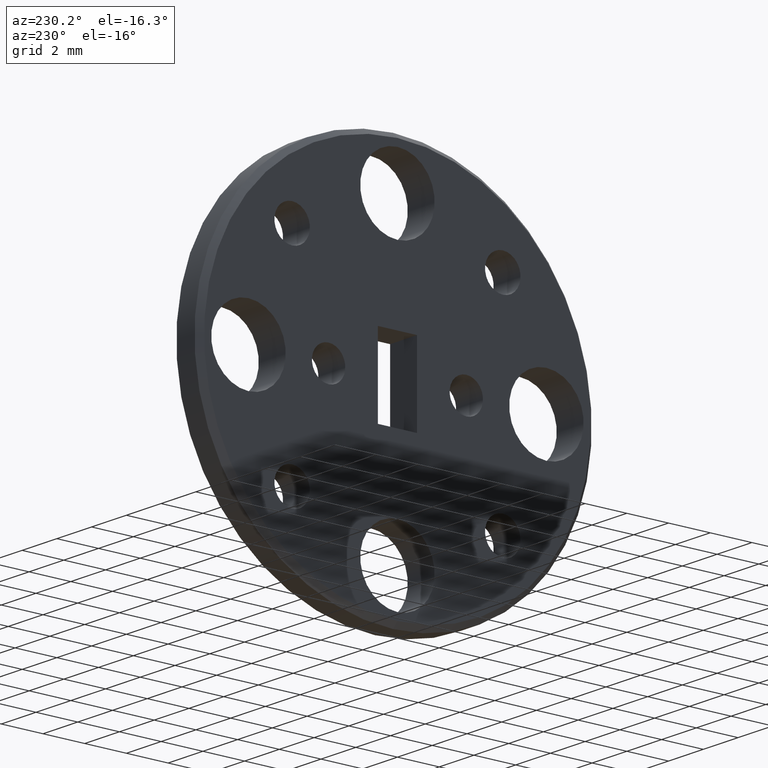
[diagram: clean part render]
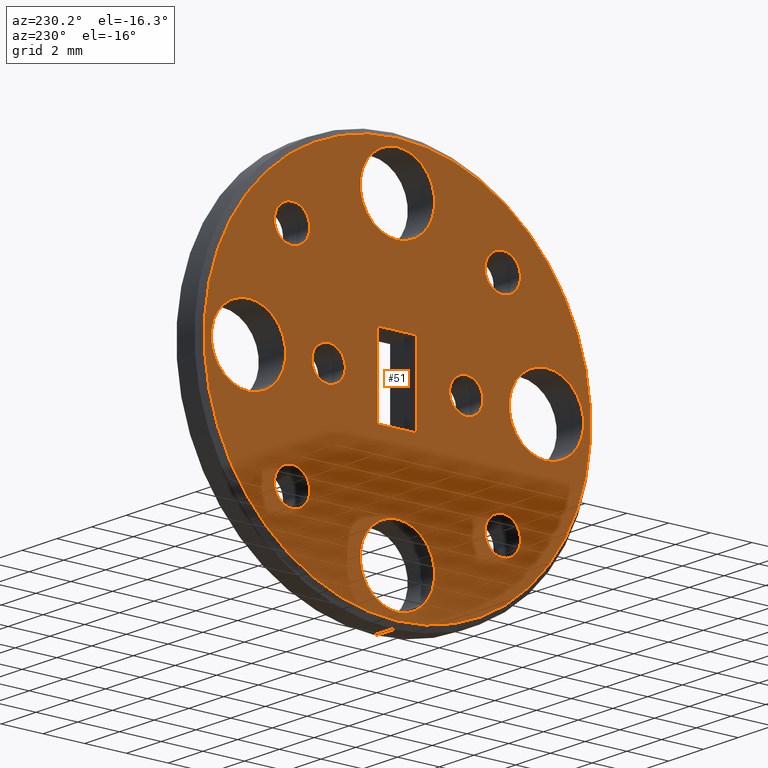
[diagram: same view with one face highlighted and labeled with its STEP entity id]
A machine part, auxiliary view. The second image highlights one B-rep face of the part: STEP entity #51.
In plain terms, the highlighted planar face has unit normal (-1, 0, 0).
Its self-contained STEP definition (entity closure, byte-faithful):
#7 = EDGE_CURVE ( 'NONE', #545, #843, #1102, .T. ) ;
#8 = CARTESIAN_POINT ( 'NONE',  ( -5.262123598916295500E-017, 0.2812500000000000600, 0.0000000000000000000 ) ) ;
#9 = CARTESIAN_POINT ( 'NONE',  ( 0.0000000000000000000, 0.0000000000000000000, 0.0000000000000000000 ) ) ;
#10 = DIRECTION ( 'NONE',  ( 0.0000000000000000000, 0.0000000000000000000, 1.000000000000000000 ) ) ;
#20 = CARTESIAN_POINT ( 'NONE',  ( -5.262123598916295500E-017, 0.2812500000000000600, -0.07031499999999954500 ) ) ;
#21 = EDGE_LOOP ( 'NONE', ( #1028, #849 ) ) ;
#23 = LINE ( 'NONE', #1135, #597 ) ;
#28 = CARTESIAN_POINT ( 'NONE',  ( 0.0000000000000000000, -0.03699999999999999800, 0.07399999999999999600 ) ) ;
#41 = AXIS2_PLACEMENT_3D ( 'NONE', #536, #1040, #766 ) ;
#43 = FACE_BOUND ( 'NONE', #60, .T. ) ;
#46 = DIRECTION ( 'NONE',  ( -1.000000000000000000, -0.0000000000000000000, -0.0000000000000000000 ) ) ;
#47 = DIRECTION ( 'NONE',  ( -1.000000000000000000, -0.0000000000000000000, -0.0000000000000000000 ) ) ;
#51 = ADVANCED_FACE ( 'NONE', ( #887, #942, #175, #738, #355, #602, #1019, #764, #445, #43, #712, #1090 ), #907, .T. ) ;
#52 = ORIENTED_EDGE ( 'NONE', *, *, #980, .F. ) ;
#56 = EDGE_CURVE ( 'NONE', #284, #442, #1146, .T. ) ;
#60 = EDGE_LOOP ( 'NONE', ( #350, #126 ) ) ;
#63 = DIRECTION ( 'NONE',  ( -1.000000000000000000, -0.0000000000000000000, -0.0000000000000000000 ) ) ;
#77 = ORIENTED_EDGE ( 'NONE', *, *, #263, .T. ) ;
#87 = CIRCLE ( 'NONE', #235, 0.03349999999999951600 ) ;
#89 = EDGE_LOOP ( 'NONE', ( #234, #327, #501, #944 ) ) ;
#107 = EDGE_CURVE ( 'NONE', #843, #545, #655, .T. ) ;
#113 = VERTEX_POINT ( 'NONE', #1016 ) ;
#116 = ORIENTED_EDGE ( 'NONE', *, *, #149, .F. ) ;
#117 = CARTESIAN_POINT ( 'NONE',  ( -6.123233995736789800E-020, -0.1299999999999999800, -0.03149999999999999300 ) ) ;
#120 = DIRECTION ( 'NONE',  ( -0.0000000000000000000, -0.0000000000000000000, -1.000000000000000000 ) ) ;
#121 = DIRECTION ( 'NONE',  ( 0.0000000000000000000, 0.0000000000000000000, 1.000000000000000000 ) ) ;
#125 = EDGE_CURVE ( 'NONE', #471, #675, #427, .T. ) ;
#126 = ORIENTED_EDGE ( 'NONE', *, *, #896, .F. ) ;
#128 = CIRCLE ( 'NONE', #474, 0.3649999999999999400 ) ;
#131 = EDGE_CURVE ( 'NONE', #658, #365, #399, .T. ) ;
#134 = CARTESIAN_POINT ( 'NONE',  ( -5.712977318022390700E-017, -0.1988737822087161500, 0.1988737822087169000 ) ) ;
#140 = EDGE_LOOP ( 'NONE', ( #176, #951 ) ) ;
#147 = CARTESIAN_POINT ( 'NONE',  ( 0.0000000000000000000, 0.03699999999999999800, 0.07399999999999999600 ) ) ;
#149 = EDGE_CURVE ( 'NONE', #1014, #534, #615, .T. ) ;
#156 = CIRCLE ( 'NONE', #590, 0.07031499999999954500 ) ;
#162 = VERTEX_POINT ( 'NONE', #117 ) ;
#167 = CARTESIAN_POINT ( 'NONE',  ( -5.262123598916295500E-017, 8.611103968204569800E-018, -0.3515649999999995700 ) ) ;
#171 = EDGE_LOOP ( 'NONE', ( #982, #1021 ) ) ;
#175 = FACE_OUTER_BOUND ( 'NONE', #1091, .T. ) ;
#176 = ORIENTED_EDGE ( 'NONE', *, *, #804, .F. ) ;
#187 = AXIS2_PLACEMENT_3D ( 'NONE', #374, #459, #651 ) ;
#189 = CARTESIAN_POINT ( 'NONE',  ( -5.712977318022390700E-017, 0.1988737822087160700, -0.1988737822087169600 ) ) ;
#190 = EDGE_CURVE ( 'NONE', #1087, #544, #532, .T. ) ;
#192 = DIRECTION ( 'NONE',  ( 0.0000000000000000000, 0.0000000000000000000, 1.000000000000000000 ) ) ;
#193 = DIRECTION ( 'NONE',  ( -1.000000000000000000, -0.0000000000000000000, -0.0000000000000000000 ) ) ;
#201 = EDGE_LOOP ( 'NONE', ( #353, #393 ) ) ;
#203 = AXIS2_PLACEMENT_3D ( 'NONE', #1023, #937, #303 ) ;
#222 = VERTEX_POINT ( 'NONE', #531 ) ;
#234 = ORIENTED_EDGE ( 'NONE', *, *, #784, .F. ) ;
#235 = AXIS2_PLACEMENT_3D ( 'NONE', #404, #396, #1013 ) ;
#240 = VERTEX_POINT ( 'NONE', #1047 ) ;
#250 = DIRECTION ( 'NONE',  ( -1.000000000000000000, -0.0000000000000000000, -0.0000000000000000000 ) ) ;
#263 = EDGE_CURVE ( 'NONE', #113, #1143, #710, .T. ) ;
#266 = VERTEX_POINT ( 'NONE', #880 ) ;
#267 = LINE ( 'NONE', #903, #587 ) ;
#268 = DIRECTION ( 'NONE',  ( -0.0000000000000000000, -1.000000000000000000, -0.0000000000000000000 ) ) ;
#273 = DIRECTION ( 'NONE',  ( 0.0000000000000000000, 0.0000000000000000000, 1.000000000000000000 ) ) ;
#279 = CARTESIAN_POINT ( 'NONE',  ( 0.0000000000000000000, 0.03699999999999999800, -0.07399999999999999600 ) ) ;
#284 = VERTEX_POINT ( 'NONE', #711 ) ;
#289 = DIRECTION ( 'NONE',  ( -1.000000000000000000, -0.0000000000000000000, -0.0000000000000000000 ) ) ;
#290 = ORIENTED_EDGE ( 'NONE', *, *, #622, .F. ) ;
#301 = CARTESIAN_POINT ( 'NONE',  ( -5.712977318022390700E-017, -0.1988737822087161500, 0.2323737822087164100 ) ) ;
#303 = DIRECTION ( 'NONE',  ( 0.0000000000000000000, 0.0000000000000000000, 1.000000000000000000 ) ) ;
#312 = VERTEX_POINT ( 'NONE', #789 ) ;
#322 = CIRCLE ( 'NONE', #572, 0.03149999999999999300 ) ;
#327 = ORIENTED_EDGE ( 'NONE', *, *, #551, .F. ) ;
#328 = AXIS2_PLACEMENT_3D ( 'NONE', #476, #388, #668 ) ;
#331 = DIRECTION ( 'NONE',  ( -1.000000000000000000, 0.0000000000000000000, 0.0000000000000000000 ) ) ;
#333 = CARTESIAN_POINT ( 'NONE',  ( -5.712977318022390700E-017, -0.1988737822087169000, -0.2323737822087156600 ) ) ;
#337 = CIRCLE ( 'NONE', #526, 0.03349999999999951600 ) ;
#350 = ORIENTED_EDGE ( 'NONE', *, *, #840, .F. ) ;
#353 = ORIENTED_EDGE ( 'NONE', *, *, #740, .F. ) ;
#355 = FACE_BOUND ( 'NONE', #201, .T. ) ;
#359 = EDGE_LOOP ( 'NONE', ( #290, #678 ) ) ;
#360 = EDGE_CURVE ( 'NONE', #534, #1014, #749, .T. ) ;
#365 = VERTEX_POINT ( 'NONE', #781 ) ;
#371 = CARTESIAN_POINT ( 'NONE',  ( -5.712977318022390700E-017, 0.1988737822087169600, 0.1988737822087160700 ) ) ;
#374 = CARTESIAN_POINT ( 'NONE',  ( -5.712977318022390700E-017, -0.1988737822087169000, -0.1988737822087161500 ) ) ;
#383 = LINE ( 'NONE', #28, #638 ) ;
#386 = DIRECTION ( 'NONE',  ( -1.000000000000000000, -0.0000000000000000000, -0.0000000000000000000 ) ) ;
#388 = DIRECTION ( 'NONE',  ( -1.000000000000000000, -0.0000000000000000000, -0.0000000000000000000 ) ) ;
#393 = ORIENTED_EDGE ( 'NONE', *, *, #485, .F. ) ;
#395 = CARTESIAN_POINT ( 'NONE',  ( 0.0000000000000000000, 0.03699999999999999800, -0.07399999999999999600 ) ) ;
#396 = DIRECTION ( 'NONE',  ( -1.000000000000000000, -0.0000000000000000000, -0.0000000000000000000 ) ) ;
#399 = CIRCLE ( 'NONE', #328, 0.07031499999999954500 ) ;
#401 = AXIS2_PLACEMENT_3D ( 'NONE', #8, #992, #435 ) ;
#404 = CARTESIAN_POINT ( 'NONE',  ( -5.712977318022390700E-017, -0.1988737822087161500, 0.1988737822087169000 ) ) ;
#411 = CARTESIAN_POINT ( 'NONE',  ( -6.123233995736789800E-020, 0.1299999999999999800, 0.03149999999999999300 ) ) ;
#415 = VERTEX_POINT ( 'NONE', #874 ) ;
#423 = AXIS2_PLACEMENT_3D ( 'NONE', #966, #697, #607 ) ;
#427 = CIRCLE ( 'NONE', #850, 0.07031499999999954500 ) ;
#432 = EDGE_CURVE ( 'NONE', #1143, #113, #128, .T. ) ;
#435 = DIRECTION ( 'NONE',  ( 0.0000000000000000000, 0.0000000000000000000, 1.000000000000000000 ) ) ;
#442 = VERTEX_POINT ( 'NONE', #333 ) ;
#445 = FACE_BOUND ( 'NONE', #359, .T. ) ;
#447 = VERTEX_POINT ( 'NONE', #1041 ) ;
#448 = CARTESIAN_POINT ( 'NONE',  ( 0.0000000000000000000, 4.531193156845206700E-017, 0.3649999999999999400 ) ) ;
#454 = CIRCLE ( 'NONE', #713, 0.07031499999999954500 ) ;
#456 = ORIENTED_EDGE ( 'NONE', *, *, #125, .F. ) ;
#459 = DIRECTION ( 'NONE',  ( -1.000000000000000000, -0.0000000000000000000, -0.0000000000000000000 ) ) ;
#463 = DIRECTION ( 'NONE',  ( -1.000000000000000000, -0.0000000000000000000, -0.0000000000000000000 ) ) ;
#464 = CARTESIAN_POINT ( 'NONE',  ( -6.123233995736789800E-020, 0.1299999999999999800, 0.0000000000000000000 ) ) ;
#471 = VERTEX_POINT ( 'NONE', #877 ) ;
#473 = CARTESIAN_POINT ( 'NONE',  ( -5.262123598916295500E-017, 0.2812500000000000600, 0.0000000000000000000 ) ) ;
#474 = AXIS2_PLACEMENT_3D ( 'NONE', #525, #331, #605 ) ;
#476 = CARTESIAN_POINT ( 'NONE',  ( -5.262123598916295500E-017, 0.0000000000000000000, 0.2812500000000000600 ) ) ;
#477 = DIRECTION ( 'NONE',  ( -1.000000000000000000, -0.0000000000000000000, -0.0000000000000000000 ) ) ;
#485 = EDGE_CURVE ( 'NONE', #612, #266, #996, .T. ) ;
#489 = DIRECTION ( 'NONE',  ( 0.0000000000000000000, 0.0000000000000000000, 1.000000000000000000 ) ) ;
#490 = ORIENTED_EDGE ( 'NONE', *, *, #663, .F. ) ;
#491 = DIRECTION ( 'NONE',  ( 0.0000000000000000000, 0.0000000000000000000, 1.000000000000000000 ) ) ;
#493 = AXIS2_PLACEMENT_3D ( 'NONE', #917, #584, #574 ) ;
#497 = CARTESIAN_POINT ( 'NONE',  ( 0.0000000000000000000, -0.03699999999999999800, 0.07399999999999999600 ) ) ;
#501 = ORIENTED_EDGE ( 'NONE', *, *, #1151, .F. ) ;
#503 = DIRECTION ( 'NONE',  ( 0.0000000000000000000, 0.0000000000000000000, 1.000000000000000000 ) ) ;
#506 = AXIS2_PLACEMENT_3D ( 'NONE', #189, #250, #905 ) ;
#513 = CIRCLE ( 'NONE', #768, 0.03349999999999951600 ) ;
#517 = AXIS2_PLACEMENT_3D ( 'NONE', #949, #63, #858 ) ;
#525 = CARTESIAN_POINT ( 'NONE',  ( 0.0000000000000000000, 0.0000000000000000000, 0.0000000000000000000 ) ) ;
#526 = AXIS2_PLACEMENT_3D ( 'NONE', #1012, #193, #564 ) ;
#531 = CARTESIAN_POINT ( 'NONE',  ( -5.712977318022390700E-017, -0.1988737822087161500, 0.1653737822087173700 ) ) ;
#532 = LINE ( 'NONE', #395, #1075 ) ;
#534 = VERTEX_POINT ( 'NONE', #1074 ) ;
#536 = CARTESIAN_POINT ( 'NONE',  ( 0.0000000000000000000, 0.0000000000000000000, 0.0000000000000000000 ) ) ;
#543 = EDGE_CURVE ( 'NONE', #240, #447, #513, .T. ) ;
#544 = VERTEX_POINT ( 'NONE', #279 ) ;
#545 = VERTEX_POINT ( 'NONE', #1134 ) ;
#547 = EDGE_LOOP ( 'NONE', ( #52, #985 ) ) ;
#548 = CIRCLE ( 'NONE', #1058, 0.03349999999999951600 ) ;
#551 = EDGE_CURVE ( 'NONE', #415, #882, #267, .T. ) ;
#553 = AXIS2_PLACEMENT_3D ( 'NONE', #568, #477, #489 ) ;
#557 = EDGE_LOOP ( 'NONE', ( #719, #116 ) ) ;
#563 = DIRECTION ( 'NONE',  ( -1.000000000000000000, 0.0000000000000000000, 0.0000000000000000000 ) ) ;
#564 = DIRECTION ( 'NONE',  ( 0.0000000000000000000, 0.0000000000000000000, 1.000000000000000000 ) ) ;
#566 = CARTESIAN_POINT ( 'NONE',  ( -5.712977318022390700E-017, 0.1988737822087160700, -0.2323737822087164900 ) ) ;
#568 = CARTESIAN_POINT ( 'NONE',  ( -5.262123598916295500E-017, 0.0000000000000000000, -0.2812500000000000600 ) ) ;
#572 = AXIS2_PLACEMENT_3D ( 'NONE', #943, #1024, #503 ) ;
#574 = DIRECTION ( 'NONE',  ( 0.0000000000000000000, 0.0000000000000000000, 1.000000000000000000 ) ) ;
#583 = DIRECTION ( 'NONE',  ( 0.0000000000000000000, 0.0000000000000000000, 1.000000000000000000 ) ) ;
#584 = DIRECTION ( 'NONE',  ( -1.000000000000000000, -0.0000000000000000000, -0.0000000000000000000 ) ) ;
#587 = VECTOR ( 'NONE', #623, 39.37007874015748100 ) ;
#588 = EDGE_CURVE ( 'NONE', #714, #312, #654, .T. ) ;
#590 = AXIS2_PLACEMENT_3D ( 'NONE', #932, #46, #762 ) ;
#597 = VECTOR ( 'NONE', #268, 39.37007874015748100 ) ;
#602 = FACE_BOUND ( 'NONE', #140, .T. ) ;
#605 = DIRECTION ( 'NONE',  ( 0.0000000000000000000, 0.0000000000000000000, 1.000000000000000000 ) ) ;
#607 = DIRECTION ( 'NONE',  ( 0.0000000000000000000, 0.0000000000000000000, 1.000000000000000000 ) ) ;
#612 = VERTEX_POINT ( 'NONE', #20 ) ;
#615 = CIRCLE ( 'NONE', #493, 0.07031499999999954500 ) ;
#622 = EDGE_CURVE ( 'NONE', #312, #714, #548, .T. ) ;
#623 = DIRECTION ( 'NONE',  ( 0.0000000000000000000, 0.0000000000000000000, 1.000000000000000000 ) ) ;
#638 = VECTOR ( 'NONE', #751, 39.37007874015748100 ) ;
#643 = AXIS2_PLACEMENT_3D ( 'NONE', #134, #47, #583 ) ;
#650 = ORIENTED_EDGE ( 'NONE', *, *, #56, .F. ) ;
#651 = DIRECTION ( 'NONE',  ( 0.0000000000000000000, 0.0000000000000000000, 1.000000000000000000 ) ) ;
#654 = CIRCLE ( 'NONE', #506, 0.03349999999999951600 ) ;
#655 = CIRCLE ( 'NONE', #1020, 0.03149999999999999300 ) ;
#658 = VERTEX_POINT ( 'NONE', #839 ) ;
#662 = DIRECTION ( 'NONE',  ( -1.000000000000000000, -0.0000000000000000000, -0.0000000000000000000 ) ) ;
#663 = EDGE_CURVE ( 'NONE', #675, #471, #667, .T. ) ;
#667 = CIRCLE ( 'NONE', #553, 0.07031499999999954500 ) ;
#668 = DIRECTION ( 'NONE',  ( 0.0000000000000000000, 0.0000000000000000000, 1.000000000000000000 ) ) ;
#672 = AXIS2_PLACEMENT_3D ( 'NONE', #9, #563, #273 ) ;
#674 = CARTESIAN_POINT ( 'NONE',  ( -6.123233995736789800E-020, -0.1299999999999999800, 0.03149999999999999300 ) ) ;
#675 = VERTEX_POINT ( 'NONE', #167 ) ;
#678 = ORIENTED_EDGE ( 'NONE', *, *, #588, .F. ) ;
#697 = DIRECTION ( 'NONE',  ( -1.000000000000000000, -0.0000000000000000000, -0.0000000000000000000 ) ) ;
#703 = EDGE_CURVE ( 'NONE', #442, #284, #337, .T. ) ;
#710 = CIRCLE ( 'NONE', #41, 0.3649999999999999400 ) ;
#711 = CARTESIAN_POINT ( 'NONE',  ( -5.712977318022390700E-017, -0.1988737822087169000, -0.1653737822087166200 ) ) ;
#712 = FACE_BOUND ( 'NONE', #171, .T. ) ;
#713 = AXIS2_PLACEMENT_3D ( 'NONE', #473, #662, #121 ) ;
#714 = VERTEX_POINT ( 'NONE', #566 ) ;
#719 = ORIENTED_EDGE ( 'NONE', *, *, #360, .F. ) ;
#738 = FACE_BOUND ( 'NONE', #89, .T. ) ;
#740 = EDGE_CURVE ( 'NONE', #266, #612, #454, .T. ) ;
#749 = CIRCLE ( 'NONE', #517, 0.07031499999999954500 ) ;
#750 = CARTESIAN_POINT ( 'NONE',  ( -5.262123598916295500E-017, 0.0000000000000000000, -0.2812500000000000600 ) ) ;
#751 = DIRECTION ( 'NONE',  ( 0.0000000000000000000, 1.000000000000000000, 0.0000000000000000000 ) ) ;
#754 = DIRECTION ( 'NONE',  ( 0.0000000000000000000, 0.0000000000000000000, 1.000000000000000000 ) ) ;
#755 = CARTESIAN_POINT ( 'NONE',  ( -6.123233995736789800E-020, 0.1299999999999999800, 0.0000000000000000000 ) ) ;
#762 = DIRECTION ( 'NONE',  ( 0.0000000000000000000, 0.0000000000000000000, 1.000000000000000000 ) ) ;
#764 = FACE_BOUND ( 'NONE', #1117, .T. ) ;
#766 = DIRECTION ( 'NONE',  ( 0.0000000000000000000, 0.0000000000000000000, 1.000000000000000000 ) ) ;
#768 = AXIS2_PLACEMENT_3D ( 'NONE', #371, #463, #10 ) ;
#781 = CARTESIAN_POINT ( 'NONE',  ( -5.262123598916295500E-017, 0.0000000000000000000, 0.3515649999999995700 ) ) ;
#784 = EDGE_CURVE ( 'NONE', #882, #1087, #383, .T. ) ;
#788 = CARTESIAN_POINT ( 'NONE',  ( -5.262123598916295500E-017, -0.2812500000000000600, -0.07031499999999954500 ) ) ;
#789 = CARTESIAN_POINT ( 'NONE',  ( -5.712977318022390700E-017, 0.1988737822087160700, -0.1653737822087174300 ) ) ;
#799 = VERTEX_POINT ( 'NONE', #301 ) ;
#804 = EDGE_CURVE ( 'NONE', #365, #658, #156, .T. ) ;
#809 = CIRCLE ( 'NONE', #643, 0.03349999999999951600 ) ;
#814 = ORIENTED_EDGE ( 'NONE', *, *, #432, .T. ) ;
#829 = VERTEX_POINT ( 'NONE', #674 ) ;
#839 = CARTESIAN_POINT ( 'NONE',  ( -5.262123598916295500E-017, 8.611103968204572900E-018, 0.2109350000000004800 ) ) ;
#840 = EDGE_CURVE ( 'NONE', #799, #222, #809, .T. ) ;
#841 = DIRECTION ( 'NONE',  ( -1.000000000000000000, -0.0000000000000000000, -0.0000000000000000000 ) ) ;
#843 = VERTEX_POINT ( 'NONE', #411 ) ;
#849 = ORIENTED_EDGE ( 'NONE', *, *, #7, .F. ) ;
#850 = AXIS2_PLACEMENT_3D ( 'NONE', #750, #386, #754 ) ;
#858 = DIRECTION ( 'NONE',  ( 0.0000000000000000000, 0.0000000000000000000, 1.000000000000000000 ) ) ;
#860 = ORIENTED_EDGE ( 'NONE', *, *, #703, .F. ) ;
#867 = EDGE_CURVE ( 'NONE', #447, #240, #1099, .T. ) ;
#874 = CARTESIAN_POINT ( 'NONE',  ( -0.0000000000000000000, -0.03699999999999999800, -0.07399999999999999600 ) ) ;
#877 = CARTESIAN_POINT ( 'NONE',  ( -5.262123598916295500E-017, 0.0000000000000000000, -0.2109350000000004800 ) ) ;
#880 = CARTESIAN_POINT ( 'NONE',  ( -5.262123598916295500E-017, 0.2812500000000000600, 0.07031499999999954500 ) ) ;
#882 = VERTEX_POINT ( 'NONE', #497 ) ;
#887 = FACE_BOUND ( 'NONE', #21, .T. ) ;
#896 = EDGE_CURVE ( 'NONE', #222, #799, #87, .T. ) ;
#903 = CARTESIAN_POINT ( 'NONE',  ( -0.0000000000000000000, -0.03699999999999999800, -0.07399999999999999600 ) ) ;
#905 = DIRECTION ( 'NONE',  ( 0.0000000000000000000, 0.0000000000000000000, 1.000000000000000000 ) ) ;
#907 = PLANE ( 'NONE',  #672 ) ;
#917 = CARTESIAN_POINT ( 'NONE',  ( -5.262123598916295500E-017, -0.2812500000000000600, 0.0000000000000000000 ) ) ;
#928 = EDGE_CURVE ( 'NONE', #162, #829, #322, .T. ) ;
#932 = CARTESIAN_POINT ( 'NONE',  ( -5.262123598916295500E-017, 0.0000000000000000000, 0.2812500000000000600 ) ) ;
#937 = DIRECTION ( 'NONE',  ( -1.000000000000000000, -0.0000000000000000000, -0.0000000000000000000 ) ) ;
#942 = FACE_BOUND ( 'NONE', #547, .T. ) ;
#943 = CARTESIAN_POINT ( 'NONE',  ( -6.123233995736789800E-020, -0.1299999999999999800, 0.0000000000000000000 ) ) ;
#944 = ORIENTED_EDGE ( 'NONE', *, *, #190, .F. ) ;
#949 = CARTESIAN_POINT ( 'NONE',  ( -5.262123598916295500E-017, -0.2812500000000000600, 0.0000000000000000000 ) ) ;
#951 = ORIENTED_EDGE ( 'NONE', *, *, #131, .F. ) ;
#966 = CARTESIAN_POINT ( 'NONE',  ( -6.123233995736789800E-020, -0.1299999999999999800, 0.0000000000000000000 ) ) ;
#980 = EDGE_CURVE ( 'NONE', #829, #162, #1029, .T. ) ;
#982 = ORIENTED_EDGE ( 'NONE', *, *, #867, .F. ) ;
#985 = ORIENTED_EDGE ( 'NONE', *, *, #928, .F. ) ;
#992 = DIRECTION ( 'NONE',  ( -1.000000000000000000, -0.0000000000000000000, -0.0000000000000000000 ) ) ;
#996 = CIRCLE ( 'NONE', #401, 0.07031499999999954500 ) ;
#1012 = CARTESIAN_POINT ( 'NONE',  ( -5.712977318022390700E-017, -0.1988737822087169000, -0.1988737822087161500 ) ) ;
#1013 = DIRECTION ( 'NONE',  ( 0.0000000000000000000, 0.0000000000000000000, 1.000000000000000000 ) ) ;
#1014 = VERTEX_POINT ( 'NONE', #788 ) ;
#1016 = CARTESIAN_POINT ( 'NONE',  ( 0.0000000000000000000, 0.0000000000000000000, -0.3649999999999999400 ) ) ;
#1019 = FACE_BOUND ( 'NONE', #557, .T. ) ;
#1020 = AXIS2_PLACEMENT_3D ( 'NONE', #755, #841, #491 ) ;
#1021 = ORIENTED_EDGE ( 'NONE', *, *, #543, .F. ) ;
#1023 = CARTESIAN_POINT ( 'NONE',  ( -5.712977318022390700E-017, 0.1988737822087169600, 0.1988737822087160700 ) ) ;
#1024 = DIRECTION ( 'NONE',  ( -1.000000000000000000, -0.0000000000000000000, -0.0000000000000000000 ) ) ;
#1028 = ORIENTED_EDGE ( 'NONE', *, *, #107, .F. ) ;
#1029 = CIRCLE ( 'NONE', #423, 0.03149999999999999300 ) ;
#1040 = DIRECTION ( 'NONE',  ( -1.000000000000000000, 0.0000000000000000000, 0.0000000000000000000 ) ) ;
#1041 = CARTESIAN_POINT ( 'NONE',  ( -5.712977318022390700E-017, 0.1988737822087169600, 0.2323737822087156000 ) ) ;
#1047 = CARTESIAN_POINT ( 'NONE',  ( -5.712977318022390700E-017, 0.1988737822087169600, 0.1653737822087165400 ) ) ;
#1058 = AXIS2_PLACEMENT_3D ( 'NONE', #1096, #289, #1083 ) ;
#1066 = EDGE_LOOP ( 'NONE', ( #650, #860 ) ) ;
#1069 = AXIS2_PLACEMENT_3D ( 'NONE', #464, #1081, #192 ) ;
#1074 = CARTESIAN_POINT ( 'NONE',  ( -5.262123598916295500E-017, -0.2812500000000000600, 0.07031499999999954500 ) ) ;
#1075 = VECTOR ( 'NONE', #120, 39.37007874015748100 ) ;
#1081 = DIRECTION ( 'NONE',  ( -1.000000000000000000, -0.0000000000000000000, -0.0000000000000000000 ) ) ;
#1083 = DIRECTION ( 'NONE',  ( 0.0000000000000000000, 0.0000000000000000000, 1.000000000000000000 ) ) ;
#1087 = VERTEX_POINT ( 'NONE', #147 ) ;
#1090 = FACE_BOUND ( 'NONE', #1066, .T. ) ;
#1091 = EDGE_LOOP ( 'NONE', ( #77, #814 ) ) ;
#1096 = CARTESIAN_POINT ( 'NONE',  ( -5.712977318022390700E-017, 0.1988737822087160700, -0.1988737822087169600 ) ) ;
#1099 = CIRCLE ( 'NONE', #203, 0.03349999999999951600 ) ;
#1102 = CIRCLE ( 'NONE', #1069, 0.03149999999999999300 ) ;
#1117 = EDGE_LOOP ( 'NONE', ( #456, #490 ) ) ;
#1134 = CARTESIAN_POINT ( 'NONE',  ( -6.123233995736789800E-020, 0.1299999999999999800, -0.03149999999999999300 ) ) ;
#1135 = CARTESIAN_POINT ( 'NONE',  ( -0.0000000000000000000, -0.03699999999999999800, -0.07399999999999999600 ) ) ;
#1143 = VERTEX_POINT ( 'NONE', #448 ) ;
#1146 = CIRCLE ( 'NONE', #187, 0.03349999999999951600 ) ;
#1151 = EDGE_CURVE ( 'NONE', #544, #415, #23, .T. ) ;